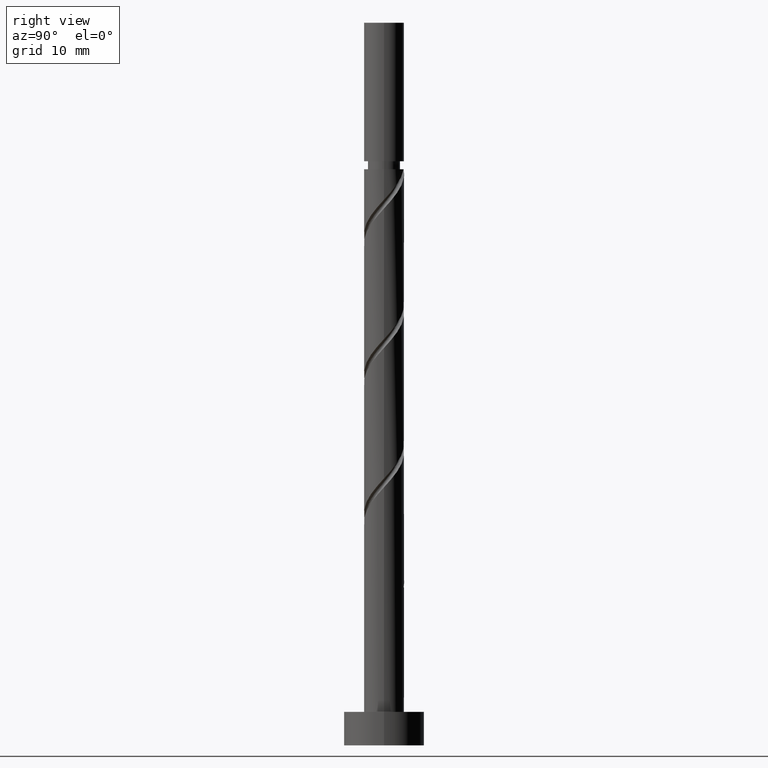
[diagram: clean part render]
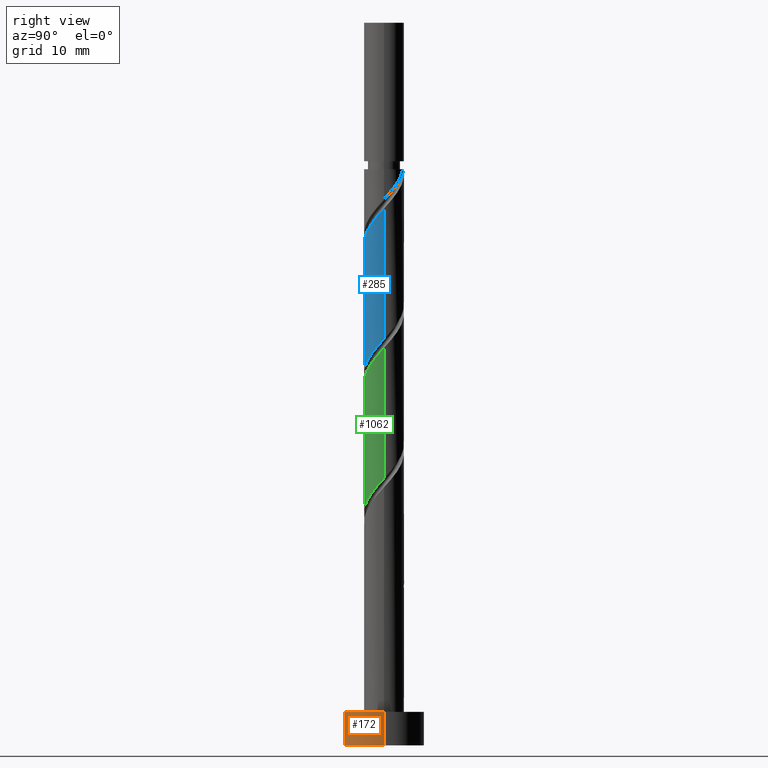
[diagram: same view with three faces highlighted in distinct colors, each labeled with its STEP entity id]
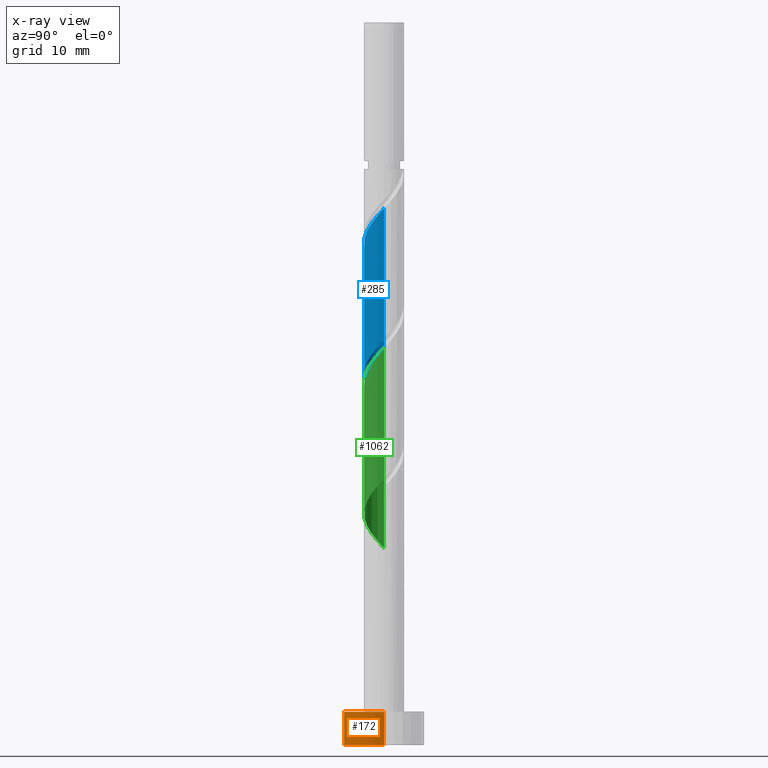
[diagram: x-ray of the same camera — body ghosted, the three highlighted faces saturated]
A machine part, right view with three faces highlighted in distinct colors.
The next image is the same camera in x-ray (body ghosted, the three faces saturated) — at least one of them is partly hidden behind the body in this view.
Their STEP definitions:

[orange] entity #172 — the highlighted cylindrical surface (partial cylindrical patch) has radius 6 mm, axis along (-0, -0, -1).
#3 = VECTOR ( 'NONE', #278, 1000.000000000000000 ) ;
#45 = VECTOR ( 'NONE', #425, 1000.000000000000000 ) ;
#57 = DIRECTION ( 'NONE',  ( -1.000000000000000000, 0.000000000000000000, 0.000000000000000000 ) ) ;
#134 = VERTEX_POINT ( 'NONE', #1276 ) ;
#172 = ADVANCED_FACE ( 'NONE', ( #775 ), #176, .T. ) ;
#176 = CYLINDRICAL_SURFACE ( 'NONE', #1316, 6.000000000000000888 ) ;
#201 = EDGE_CURVE ( 'NONE', #1315, #1308, #1033, .T. ) ;
#215 = DIRECTION ( 'NONE',  ( 1.000000000000000000, 0.000000000000000000, 0.000000000000000000 ) ) ;
#224 = CARTESIAN_POINT ( 'NONE',  ( 0.000000000000000000, 0.000000000000000000, 5.000000000000000000 ) ) ;
#232 = ORIENTED_EDGE ( 'NONE', *, *, #649, .F. ) ;
#278 = DIRECTION ( 'NONE',  ( -0.000000000000000000, -0.000000000000000000, -1.000000000000000000 ) ) ;
#353 = ORIENTED_EDGE ( 'NONE', *, *, #201, .T. ) ;
#363 = DIRECTION ( 'NONE',  ( 1.000000000000000000, 0.000000000000000000, 0.000000000000000000 ) ) ;
#379 = LINE ( 'NONE', #1464, #3 ) ;
#425 = DIRECTION ( 'NONE',  ( -0.000000000000000000, -0.000000000000000000, -1.000000000000000000 ) ) ;
#432 = CARTESIAN_POINT ( 'NONE',  ( 6.000000000000000888, 7.347880794884120722E-16, 5.000000000000000000 ) ) ;
#613 = CIRCLE ( 'NONE', #1265, 6.000000000000000888 ) ;
#649 = EDGE_CURVE ( 'NONE', #1315, #1158, #710, .T. ) ;
#699 = ORIENTED_EDGE ( 'NONE', *, *, #736, .T. ) ;
#708 = CARTESIAN_POINT ( 'NONE',  ( 0.000000000000000000, 0.000000000000000000, 0.000000000000000000 ) ) ;
#710 = CIRCLE ( 'NONE', #1317, 6.000000000000000888 ) ;
#736 = EDGE_CURVE ( 'NONE', #1308, #134, #613, .T. ) ;
#775 = FACE_OUTER_BOUND ( 'NONE', #1336, .T. ) ;
#820 = DIRECTION ( 'NONE',  ( 0.000000000000000000, 0.000000000000000000, 1.000000000000000000 ) ) ;
#911 = DIRECTION ( 'NONE',  ( -0.000000000000000000, -0.000000000000000000, -1.000000000000000000 ) ) ;
#961 = ORIENTED_EDGE ( 'NONE', *, *, #1535, .F. ) ;
#1033 = LINE ( 'NONE', #1525, #45 ) ;
#1144 = CARTESIAN_POINT ( 'NONE',  ( 0.000000000000000000, 0.000000000000000000, 5.000000000000000000 ) ) ;
#1158 = VERTEX_POINT ( 'NONE', #432 ) ;
#1186 = CARTESIAN_POINT ( 'NONE',  ( -6.000000000000000888, 0.000000000000000000, 5.000000000000000000 ) ) ;
#1208 = DIRECTION ( 'NONE',  ( 0.000000000000000000, 0.000000000000000000, 1.000000000000000000 ) ) ;
#1265 = AXIS2_PLACEMENT_3D ( 'NONE', #708, #1208, #363 ) ;
#1276 = CARTESIAN_POINT ( 'NONE',  ( 6.000000000000000888, 7.347880794884120722E-16, 0.000000000000000000 ) ) ;
#1308 = VERTEX_POINT ( 'NONE', #1455 ) ;
#1315 = VERTEX_POINT ( 'NONE', #1186 ) ;
#1316 = AXIS2_PLACEMENT_3D ( 'NONE', #1144, #911, #57 ) ;
#1317 = AXIS2_PLACEMENT_3D ( 'NONE', #224, #820, #215 ) ;
#1336 = EDGE_LOOP ( 'NONE', ( #961, #232, #353, #699 ) ) ;
#1455 = CARTESIAN_POINT ( 'NONE',  ( -6.000000000000000888, 0.000000000000000000, 0.000000000000000000 ) ) ;
#1464 = CARTESIAN_POINT ( 'NONE',  ( 6.000000000000000888, 7.347880794884120722E-16, 5.000000000000000000 ) ) ;
#1525 = CARTESIAN_POINT ( 'NONE',  ( -6.000000000000000888, 0.000000000000000000, 5.000000000000000000 ) ) ;
#1535 = EDGE_CURVE ( 'NONE', #1158, #134, #379, .T. ) ;

[blue] entity #285 — the highlighted cylindrical surface (edge-blend (fillet) strip) has radius 3 mm, axis along (-0, -0, -1).
#18 = CARTESIAN_POINT ( 'NONE',  ( -3.000000000000003109, -0.3015113445777716783, 70.14242774882819731 ) ) ;
#22 = VERTEX_POINT ( 'NONE', #1155 ) ;
#27 = CARTESIAN_POINT ( 'NONE',  ( -0.3407363920471091490, -2.980586974261068001, 74.63959228155727033 ) ) ;
#38 = EDGE_CURVE ( 'NONE', #1219, #109, #74, .T. ) ;
#74 = LINE ( 'NONE', #1023, #834 ) ;
#105 = CARTESIAN_POINT ( 'NONE',  ( -3.000000000000004885, 5.547448029786143758E-16, 69.80812317342032713 ) ) ;
#109 = VERTEX_POINT ( 'NONE', #1518 ) ;
#202 =( BOUNDED_CURVE ( )  B_SPLINE_CURVE ( 2, ( #589, #1551, #462, #1570, #1191, #616, #327, #949, #478, #825, #221, #1093, #1071, #493, #980, #1304, #1310, #957, #341, #597, #1449, #349, #1199 ),
 .UNSPECIFIED., .F., .T. ) 
 B_SPLINE_CURVE_WITH_KNOTS ( ( 3, 2, 2, 2, 2, 2, 2, 2, 2, 2, 2, 3 ),
 ( 0.5545322023138552492, 0.5625000000000000000, 0.5749999999999999556, 0.5875000000000000222, 0.5999999999999999778, 0.6125000000000000444, 0.6250000000000000000, 0.6374999999999999556, 0.6500000000000000222, 0.6624999999999999778, 0.6750000000000000444, 0.6795322023138552492 ),
 .UNSPECIFIED. ) 
 CURVE ( )  GEOMETRIC_REPRESENTATION_ITEM ( )  RATIONAL_B_SPLINE_CURVE ( ( 0.9039174447099294074, 0.9019565955404588165, 0.9090909090909071733, 0.8978984914501233483, 0.9090909090909071733, 0.8978984914501233483, 0.9090909090909071733, 0.8978984914501233483, 0.9090909090909071733, 0.8978984914501233483, 0.9090909090909071733, 0.8978984914501233483, 0.9090909090909071733, 0.8978984914501233483, 0.9090909090909071733, 0.8978984914501233483, 0.9090909090909071733, 0.8978984914501233483, 0.9090909090909071733, 0.8978984914501233483, 0.9090909090909071733, 0.9050328050005715941, 0.9039174447099294074 ) ) 
 REPRESENTATION_ITEM ( '' )  );
#221 = CARTESIAN_POINT ( 'NONE',  ( 0.3407363920471076502, -2.980586974261063560, 55.88959228155726322 ) ) ;
#244 = CARTESIAN_POINT ( 'NONE',  ( 3.000000000000000444, -2.144013697998443370E-15, 60.72106138969420641 ) ) ;
#258 = CARTESIAN_POINT ( 'NONE',  ( 1.889924352937061069, -2.377805000122529933, 77.24375894822392752 ) ) ;
#285 = ADVANCED_FACE ( 'NONE', ( #1563 ), #472, .T. ) ;
#327 = CARTESIAN_POINT ( 'NONE',  ( 2.027606598413813188, -2.211065689225168551, 57.97292561489060603 ) ) ;
#341 = CARTESIAN_POINT ( 'NONE',  ( -2.729413328510878589, -1.245111594254574738, 51.72292561489059182 ) ) ;
#349 = CARTESIAN_POINT ( 'NONE',  ( -3.000000000000000444, -0.1709212123392984672, 50.49390581223482855 ) ) ;
#381 = CARTESIAN_POINT ( 'NONE',  ( 2.729413328510882586, -1.245111594254577625, 78.80625894822391331 ) ) ;
#462 = CARTESIAN_POINT ( 'NONE',  ( 2.939999999999999947, -0.5969924622639708467, 60.05625894822393462 ) ) ;
#467 = VERTEX_POINT ( 'NONE', #244 ) ;
#472 = CYLINDRICAL_SURFACE ( 'NONE', #1159, 3.000000000000000444 ) ;
#478 = CARTESIAN_POINT ( 'NONE',  ( 1.245111594254574738, -2.729413328510878589, 56.93125894822394173 ) ) ;
#488 = CARTESIAN_POINT ( 'NONE',  ( -2.845445682986359248, -1.062642716818108068, 70.99375894822392752 ) ) ;
#493 = CARTESIAN_POINT ( 'NONE',  ( -1.062642716818107624, -2.845445682986353919, 54.32709228155727033 ) ) ;
#509 = CARTESIAN_POINT ( 'NONE',  ( 1.476283534877584680, -2.611625341554444812, 76.72292561489061313 ) ) ;
#527 = EDGE_CURVE ( 'NONE', #1219, #22, #784, .T. ) ;
#557 = LINE ( 'NONE', #1401, #1038 ) ;
#589 = CARTESIAN_POINT ( 'NONE',  ( 3.000000000000000444, -2.144013697998443370E-15, 60.72106138969420641 ) ) ;
#597 = CARTESIAN_POINT ( 'NONE',  ( -2.926619631508480257, -0.8128149918040494804, 51.20209228155727033 ) ) ;
#606 = CARTESIAN_POINT ( 'NONE',  ( 2.926619631508484254, -0.8128149918040518118, 79.32709228155728454 ) ) ;
#616 = CARTESIAN_POINT ( 'NONE',  ( 2.377805000122526380, -1.889924352937059293, 58.49375894822392041 ) ) ;
#617 = CARTESIAN_POINT ( 'NONE',  ( -2.027606598413816741, -2.211065689225170772, 72.55625894822392752 ) ) ;
#633 = CARTESIAN_POINT ( 'NONE',  ( -2.611625341554444812, -1.476283534877585124, 71.51459228155725611 ) ) ;
#662 = DIRECTION ( 'NONE',  ( -0.000000000000000000, -0.000000000000000000, -1.000000000000000000 ) ) ;
#707 = DIRECTION ( 'NONE',  ( -0.000000000000000000, -0.000000000000000000, -1.000000000000000000 ) ) ;
#723 = CARTESIAN_POINT ( 'NONE',  ( 0.5969924622639702916, -2.940000000000004388, 75.68125894822394173 ) ) ;
#738 = CARTESIAN_POINT ( 'NONE',  ( 2.980586974261068001, -0.3407363920471094265, 79.84792561489058471 ) ) ;
#754 = CARTESIAN_POINT ( 'NONE',  ( -3.000000000000004885, 5.547448029786143758E-16, 69.80812317342032713 ) ) ;
#784 =( BOUNDED_CURVE ( )  B_SPLINE_CURVE ( 2, ( #754, #18, #843, #488, #633, #1121, #617, #994, #1326, #1110, #27, #1340, #723, #1201, #509, #258, #1485, #1086, #381, #606, #738, #1456, #1214 ),
 .UNSPECIFIED., .F., .T. ) 
 B_SPLINE_CURVE_WITH_KNOTS ( ( 3, 2, 2, 2, 2, 2, 2, 2, 2, 2, 2, 3 ),
 ( 0.5545322023138554712, 0.5625000000000000000, 0.5749999999999999556, 0.5875000000000000222, 0.5999999999999999778, 0.6125000000000000444, 0.6250000000000000000, 0.6374999999999999556, 0.6500000000000000222, 0.6624999999999999778, 0.6750000000000000444, 0.6795322023138552492 ),
 .UNSPECIFIED. ) 
 CURVE ( )  GEOMETRIC_REPRESENTATION_ITEM ( )  RATIONAL_B_SPLINE_CURVE ( ( 0.9039174447099352916, 0.9019565955404650337, 0.9090909090909131685, 0.8978984914501292325, 0.9090909090909131685, 0.8978984914501292325, 0.9090909090909131685, 0.8978984914501292325, 0.9090909090909131685, 0.8978984914501292325, 0.9090909090909131685, 0.8978984914501292325, 0.9090909090909131685, 0.8978984914501292325, 0.9090909090909131685, 0.8978984914501292325, 0.9090909090909131685, 0.8978984914501292325, 0.9090909090909131685, 0.8978984914501292325, 0.9090909090909131685, 0.9050328050005775893, 0.9039174447099354026 ) ) 
 REPRESENTATION_ITEM ( '' )  );
#792 = DIRECTION ( 'NONE',  ( -0.000000000000000000, -0.000000000000000000, -1.000000000000000000 ) ) ;
#825 = CARTESIAN_POINT ( 'NONE',  ( 0.8128149918040490363, -2.926619631508480257, 56.41042561489061313 ) ) ;
#834 = VECTOR ( 'NONE', #662, 1000.000000000000000 ) ;
#843 = CARTESIAN_POINT ( 'NONE',  ( -2.940000000000004388, -0.5969924622639702916, 70.47292561489058471 ) ) ;
#897 = EDGE_LOOP ( 'NONE', ( #997, #1091, #1556, #1138 ) ) ;
#949 = CARTESIAN_POINT ( 'NONE',  ( 1.677408196705099996, -2.532207025513276477, 57.45209228155727033 ) ) ;
#957 = CARTESIAN_POINT ( 'NONE',  ( -2.532207025513276477, -1.677408196705099996, 52.24375894822393462 ) ) ;
#980 = CARTESIAN_POINT ( 'NONE',  ( -1.476283534877583570, -2.611625341554440372, 53.80625894822393462 ) ) ;
#994 = CARTESIAN_POINT ( 'NONE',  ( -1.677408196705102439, -2.532207025513280474, 73.07709228155729875 ) ) ;
#997 = ORIENTED_EDGE ( 'NONE', *, *, #1151, .F. ) ;
#1023 = CARTESIAN_POINT ( 'NONE',  ( -3.000000000000000444, 0.000000000000000000, 108.0000000000000000 ) ) ;
#1038 = VECTOR ( 'NONE', #792, 1000.000000000000000 ) ;
#1071 = CARTESIAN_POINT ( 'NONE',  ( -0.5969924622639706246, -2.939999999999999947, 54.84792561489059892 ) ) ;
#1086 = CARTESIAN_POINT ( 'NONE',  ( 2.532207025513280474, -1.677408196705102883, 78.28542561489059892 ) ) ;
#1091 = ORIENTED_EDGE ( 'NONE', *, *, #527, .F. ) ;
#1093 = CARTESIAN_POINT ( 'NONE',  ( -0.1313422077098340413, -3.034554317013645974, 55.36875894822394173 ) ) ;
#1110 = CARTESIAN_POINT ( 'NONE',  ( -0.8128149918040515898, -2.926619631508484254, 74.11875894822395594 ) ) ;
#1121 = CARTESIAN_POINT ( 'NONE',  ( -2.377805000122529933, -1.889924352937061514, 72.03542561489061313 ) ) ;
#1138 = ORIENTED_EDGE ( 'NONE', *, *, #1445, .F. ) ;
#1151 = EDGE_CURVE ( 'NONE', #22, #467, #557, .T. ) ;
#1155 = CARTESIAN_POINT ( 'NONE',  ( 3.000000000000004441, -9.745516809083766088E-16, 80.22478984008701275 ) ) ;
#1159 = AXIS2_PLACEMENT_3D ( 'NONE', #1538, #707, #1165 ) ;
#1165 = DIRECTION ( 'NONE',  ( -1.000000000000000000, 0.000000000000000000, 0.000000000000000000 ) ) ;
#1191 = CARTESIAN_POINT ( 'NONE',  ( 2.611625341554440372, -1.476283534877583570, 59.01459228155728454 ) ) ;
#1199 = CARTESIAN_POINT ( 'NONE',  ( -3.000000000000000444, 1.784179231201501693E-15, 50.30439472302754211 ) ) ;
#1201 = CARTESIAN_POINT ( 'NONE',  ( 1.062642716818107846, -2.845445682986359248, 76.20209228155728454 ) ) ;
#1214 = CARTESIAN_POINT ( 'NONE',  ( 3.000000000000004441, -9.745516809083766088E-16, 80.22478984008701275 ) ) ;
#1219 = VERTEX_POINT ( 'NONE', #105 ) ;
#1304 = CARTESIAN_POINT ( 'NONE',  ( -1.889924352937059293, -2.377805000122526380, 53.28542561489059182 ) ) ;
#1310 = CARTESIAN_POINT ( 'NONE',  ( -2.211065689225168551, -2.027606598413813188, 52.76459228155726322 ) ) ;
#1326 = CARTESIAN_POINT ( 'NONE',  ( -1.245111594254577625, -2.729413328510882586, 73.59792561489059892 ) ) ;
#1340 = CARTESIAN_POINT ( 'NONE',  ( 0.1313422077098328755, -3.034554317013650859, 75.16042561489062734 ) ) ;
#1401 = CARTESIAN_POINT ( 'NONE',  ( 3.000000000000000444, 3.673940397442060361E-16, 108.0000000000000000 ) ) ;
#1445 = EDGE_CURVE ( 'NONE', #467, #109, #202, .T. ) ;
#1449 = CARTESIAN_POINT ( 'NONE',  ( -2.980586974261064004, -0.3407363920471077612, 50.68125894822394883 ) ) ;
#1456 = CARTESIAN_POINT ( 'NONE',  ( 3.000000000000004885, -0.1709212123392999383, 80.03527875087972632 ) ) ;
#1485 = CARTESIAN_POINT ( 'NONE',  ( 2.211065689225170772, -2.027606598413816741, 77.76459228155725611 ) ) ;
#1518 = CARTESIAN_POINT ( 'NONE',  ( -3.000000000000000444, 1.784179231201501693E-15, 50.30439472302754211 ) ) ;
#1538 = CARTESIAN_POINT ( 'NONE',  ( 0.000000000000000000, 0.000000000000000000, 108.0000000000000000 ) ) ;
#1551 = CARTESIAN_POINT ( 'NONE',  ( 3.000000000000000000, -0.3015113445777642398, 60.38675681428636466 ) ) ;
#1556 = ORIENTED_EDGE ( 'NONE', *, *, #38, .T. ) ;
#1563 = FACE_OUTER_BOUND ( 'NONE', #897, .T. ) ;
#1570 = CARTESIAN_POINT ( 'NONE',  ( 2.845445682986353919, -1.062642716818107624, 59.53542561489059182 ) ) ;

[green] entity #1062 — the highlighted cylindrical surface (edge-blend (fillet) strip) has radius 3 mm, axis along (-0, -0, -1).
#2 = AXIS2_PLACEMENT_3D ( 'NONE', #440, #802, #1032 ) ;
#34 = CARTESIAN_POINT ( 'NONE',  ( 2.611625341554440372, -1.476283534877583570, 38.18125894822395594 ) ) ;
#44 = CARTESIAN_POINT ( 'NONE',  ( 2.845445682986353919, -1.062642716818107624, 38.70209228155727033 ) ) ;
#67 = CARTESIAN_POINT ( 'NONE',  ( -2.845445682986359248, -1.062642716818108068, 50.16042561489060603 ) ) ;
#83 = CARTESIAN_POINT ( 'NONE',  ( 2.926619631508484254, -0.8128149918040518118, 58.49375894822394173 ) ) ;
#91 = CARTESIAN_POINT ( 'NONE',  ( 1.062642716818107846, -2.845445682986359248, 55.36875894822393462 ) ) ;
#129 = DIRECTION ( 'NONE',  ( -0.000000000000000000, -0.000000000000000000, -1.000000000000000000 ) ) ;
#143 = CARTESIAN_POINT ( 'NONE',  ( 3.000000000000000000, -0.3015113445777642398, 39.55342348095302185 ) ) ;
#155 = VECTOR ( 'NONE', #449, 1000.000000000000000 ) ;
#199 = CARTESIAN_POINT ( 'NONE',  ( 2.980586974261068001, -0.3407363920471094265, 59.01459228155727033 ) ) ;
#247 = ORIENTED_EDGE ( 'NONE', *, *, #1493, .F. ) ;
#257 = CARTESIAN_POINT ( 'NONE',  ( -0.5969924622639706246, -2.939999999999999947, 34.01459228155727033 ) ) ;
#286 = CARTESIAN_POINT ( 'NONE',  ( -0.1313422077098340413, -3.034554317013645974, 34.53542561489061313 ) ) ;
#304 = VERTEX_POINT ( 'NONE', #826 ) ;
#329 = CARTESIAN_POINT ( 'NONE',  ( 1.889924352937061069, -2.377805000122529933, 56.41042561489060603 ) ) ;
#361 = CARTESIAN_POINT ( 'NONE',  ( -1.062642716818107624, -2.845445682986353919, 33.49375894822393462 ) ) ;
#385 = VERTEX_POINT ( 'NONE', #1450 ) ;
#388 = CARTESIAN_POINT ( 'NONE',  ( 2.377805000122526380, -1.889924352937059293, 37.66042561489058471 ) ) ;
#406 =( BOUNDED_CURVE ( )  B_SPLINE_CURVE ( 2, ( #1172, #1150, #935, #67, #703, #1157, #795, #1166, #1180, #1418, #1429, #1030, #421, #91, #1278, #329, #681, #1042, #576, #83, #199, #1539, #1408 ),
 .UNSPECIFIED., .F., .T. ) 
 B_SPLINE_CURVE_WITH_KNOTS ( ( 3, 2, 2, 2, 2, 2, 2, 2, 2, 2, 2, 3 ),
 ( 0.3045322023138551937, 0.3125000000000000000, 0.3249999999999999556, 0.3375000000000000222, 0.3499999999999999778, 0.3625000000000000444, 0.3750000000000000000, 0.3874999999999999556, 0.4000000000000000222, 0.4124999999999999778, 0.4250000000000000444, 0.4295322023138554157 ),
 .UNSPECIFIED. ) 
 CURVE ( )  GEOMETRIC_REPRESENTATION_ITEM ( )  RATIONAL_B_SPLINE_CURVE ( ( 0.9039174447099354026, 0.9019565955404647006, 0.9090909090909131685, 0.8978984914501292325, 0.9090909090909131685, 0.8978984914501292325, 0.9090909090909131685, 0.8978984914501292325, 0.9090909090909131685, 0.8978984914501292325, 0.9090909090909131685, 0.8978984914501292325, 0.9090909090909131685, 0.8978984914501292325, 0.9090909090909131685, 0.8978984914501292325, 0.9090909090909131685, 0.8978984914501292325, 0.9090909090909131685, 0.8978984914501292325, 0.9090909090909131685, 0.9050328050005773672, 0.9039174447099354026 ) ) 
 REPRESENTATION_ITEM ( '' )  );
#421 = CARTESIAN_POINT ( 'NONE',  ( 0.5969924622639702916, -2.940000000000004388, 54.84792561489059892 ) ) ;
#440 = CARTESIAN_POINT ( 'NONE',  ( 0.000000000000000000, 0.000000000000000000, 108.0000000000000000 ) ) ;
#449 = DIRECTION ( 'NONE',  ( -0.000000000000000000, -0.000000000000000000, -1.000000000000000000 ) ) ;
#500 = CARTESIAN_POINT ( 'NONE',  ( -2.729413328510878589, -1.245111594254574738, 30.88959228155726677 ) ) ;
#535 = CARTESIAN_POINT ( 'NONE',  ( 0.8128149918040490363, -2.926619631508480257, 35.57709228155727743 ) ) ;
#561 = EDGE_LOOP ( 'NONE', ( #593, #611, #857, #247 ) ) ;
#576 = CARTESIAN_POINT ( 'NONE',  ( 2.729413328510882586, -1.245111594254577625, 57.97292561489060603 ) ) ;
#593 = ORIENTED_EDGE ( 'NONE', *, *, #1081, .F. ) ;
#611 = ORIENTED_EDGE ( 'NONE', *, *, #671, .F. ) ;
#644 = CARTESIAN_POINT ( 'NONE',  ( -3.000000000000000444, 1.784179231201501693E-15, 29.47106138969419931 ) ) ;
#668 = VERTEX_POINT ( 'NONE', #1534 ) ;
#671 = EDGE_CURVE ( 'NONE', #668, #680, #406, .T. ) ;
#680 = VERTEX_POINT ( 'NONE', #1056 ) ;
#681 = CARTESIAN_POINT ( 'NONE',  ( 2.211065689225170772, -2.027606598413816741, 56.93125894822392752 ) ) ;
#703 = CARTESIAN_POINT ( 'NONE',  ( -2.611625341554444812, -1.476283534877585124, 50.68125894822392041 ) ) ;
#737 = CARTESIAN_POINT ( 'NONE',  ( -2.980586974261064004, -0.3407363920471077612, 29.84792561489059892 ) ) ;
#761 = CARTESIAN_POINT ( 'NONE',  ( -2.211065689225168551, -2.027606598413813188, 31.93125894822393462 ) ) ;
#768 = CARTESIAN_POINT ( 'NONE',  ( -2.926619631508480257, -0.8128149918040494804, 30.36875894822394173 ) ) ;
#783 = VECTOR ( 'NONE', #129, 1000.000000000000000 ) ;
#795 = CARTESIAN_POINT ( 'NONE',  ( -2.027606598413816741, -2.211065689225170772, 51.72292561489059182 ) ) ;
#802 = DIRECTION ( 'NONE',  ( -0.000000000000000000, -0.000000000000000000, -1.000000000000000000 ) ) ;
#818 = LINE ( 'NONE', #842, #783 ) ;
#826 = CARTESIAN_POINT ( 'NONE',  ( 3.000000000000000444, -2.144013697998443370E-15, 39.88772805636085650 ) ) ;
#842 = CARTESIAN_POINT ( 'NONE',  ( -3.000000000000000444, 0.000000000000000000, 108.0000000000000000 ) ) ;
#848 =( BOUNDED_CURVE ( )  B_SPLINE_CURVE ( 2, ( #1003, #143, #1494, #44, #34, #388, #884, #867, #1120, #535, #1472, #286, #257, #361, #1363, #1355, #761, #1375, #500, #768, #737, #1213, #644 ),
 .UNSPECIFIED., .F., .T. ) 
 B_SPLINE_CURVE_WITH_KNOTS ( ( 3, 2, 2, 2, 2, 2, 2, 2, 2, 2, 2, 3 ),
 ( 0.8045322023138552492, 0.8125000000000000000, 0.8249999999999999556, 0.8375000000000000222, 0.8499999999999999778, 0.8625000000000000444, 0.8750000000000000000, 0.8874999999999999556, 0.9000000000000000222, 0.9124999999999999778, 0.9250000000000000444, 0.9295322023138552492 ),
 .UNSPECIFIED. ) 
 CURVE ( )  GEOMETRIC_REPRESENTATION_ITEM ( )  RATIONAL_B_SPLINE_CURVE ( ( 0.9039174447099294074, 0.9019565955404588165, 0.9090909090909071733, 0.8978984914501233483, 0.9090909090909071733, 0.8978984914501233483, 0.9090909090909071733, 0.8978984914501233483, 0.9090909090909071733, 0.8978984914501233483, 0.9090909090909071733, 0.8978984914501233483, 0.9090909090909071733, 0.8978984914501233483, 0.9090909090909071733, 0.8978984914501233483, 0.9090909090909071733, 0.8978984914501233483, 0.9090909090909071733, 0.8978984914501233483, 0.9090909090909071733, 0.9050328050005715941, 0.9039174447099294074 ) ) 
 REPRESENTATION_ITEM ( '' )  );
#857 = ORIENTED_EDGE ( 'NONE', *, *, #1323, .T. ) ;
#867 = CARTESIAN_POINT ( 'NONE',  ( 1.677408196705099996, -2.532207025513276477, 36.61875894822392752 ) ) ;
#884 = CARTESIAN_POINT ( 'NONE',  ( 2.027606598413813188, -2.211065689225168551, 37.13959228155727743 ) ) ;
#935 = CARTESIAN_POINT ( 'NONE',  ( -2.940000000000004388, -0.5969924622639702916, 49.63959228155727033 ) ) ;
#1003 = CARTESIAN_POINT ( 'NONE',  ( 3.000000000000000444, -2.144013697998443370E-15, 39.88772805636085650 ) ) ;
#1030 = CARTESIAN_POINT ( 'NONE',  ( 0.1313422077098328755, -3.034554317013650859, 54.32709228155727033 ) ) ;
#1032 = DIRECTION ( 'NONE',  ( -1.000000000000000000, 0.000000000000000000, 0.000000000000000000 ) ) ;
#1042 = CARTESIAN_POINT ( 'NONE',  ( 2.532207025513280474, -1.677408196705102883, 57.45209228155727743 ) ) ;
#1056 = CARTESIAN_POINT ( 'NONE',  ( 3.000000000000004441, 5.547448029786144744E-16, 59.39145650675367705 ) ) ;
#1062 = ADVANCED_FACE ( 'NONE', ( #1148 ), #1274, .T. ) ;
#1081 = EDGE_CURVE ( 'NONE', #680, #304, #1143, .T. ) ;
#1120 = CARTESIAN_POINT ( 'NONE',  ( 1.245111594254574738, -2.729413328510878589, 36.09792561489060603 ) ) ;
#1143 = LINE ( 'NONE', #1416, #155 ) ;
#1148 = FACE_OUTER_BOUND ( 'NONE', #561, .T. ) ;
#1150 = CARTESIAN_POINT ( 'NONE',  ( -3.000000000000005329, -0.3015113445777612422, 49.30909441549484740 ) ) ;
#1157 = CARTESIAN_POINT ( 'NONE',  ( -2.377805000122529933, -1.889924352937061514, 51.20209228155727743 ) ) ;
#1166 = CARTESIAN_POINT ( 'NONE',  ( -1.677408196705102439, -2.532207025513280474, 52.24375894822394173 ) ) ;
#1172 = CARTESIAN_POINT ( 'NONE',  ( -3.000000000000005329, -9.895447836915827092E-16, 48.97478984008700564 ) ) ;
#1180 = CARTESIAN_POINT ( 'NONE',  ( -1.245111594254577625, -2.729413328510882586, 52.76459228155727033 ) ) ;
#1213 = CARTESIAN_POINT ( 'NONE',  ( -3.000000000000000444, -0.1709212123392984672, 29.66057247890147863 ) ) ;
#1274 = CYLINDRICAL_SURFACE ( 'NONE', #2, 3.000000000000000444 ) ;
#1278 = CARTESIAN_POINT ( 'NONE',  ( 1.476283534877584680, -2.611625341554444812, 55.88959228155727033 ) ) ;
#1323 = EDGE_CURVE ( 'NONE', #668, #385, #818, .T. ) ;
#1355 = CARTESIAN_POINT ( 'NONE',  ( -1.889924352937059293, -2.377805000122526380, 32.45209228155727743 ) ) ;
#1363 = CARTESIAN_POINT ( 'NONE',  ( -1.476283534877583570, -2.611625341554440372, 32.97292561489060603 ) ) ;
#1375 = CARTESIAN_POINT ( 'NONE',  ( -2.532207025513276477, -1.677408196705099996, 31.41042561489059892 ) ) ;
#1408 = CARTESIAN_POINT ( 'NONE',  ( 3.000000000000004441, 5.547448029786144744E-16, 59.39145650675367705 ) ) ;
#1416 = CARTESIAN_POINT ( 'NONE',  ( 3.000000000000000444, 3.673940397442060361E-16, 108.0000000000000000 ) ) ;
#1418 = CARTESIAN_POINT ( 'NONE',  ( -0.8128149918040515898, -2.926619631508484254, 53.28542561489059182 ) ) ;
#1429 = CARTESIAN_POINT ( 'NONE',  ( -0.3407363920471091490, -2.980586974261068001, 53.80625894822394173 ) ) ;
#1450 = CARTESIAN_POINT ( 'NONE',  ( -3.000000000000000444, 1.784179231201501693E-15, 29.47106138969419931 ) ) ;
#1472 = CARTESIAN_POINT ( 'NONE',  ( 0.3407363920471076502, -2.980586974261063560, 35.05625894822393462 ) ) ;
#1493 = EDGE_CURVE ( 'NONE', #304, #385, #848, .T. ) ;
#1494 = CARTESIAN_POINT ( 'NONE',  ( 2.939999999999999947, -0.5969924622639708467, 39.22292561489059892 ) ) ;
#1534 = CARTESIAN_POINT ( 'NONE',  ( -3.000000000000005329, -9.895447836915827092E-16, 48.97478984008700564 ) ) ;
#1539 = CARTESIAN_POINT ( 'NONE',  ( 3.000000000000005773, -0.1709212123392936655, 59.20194541754639772 ) ) ;